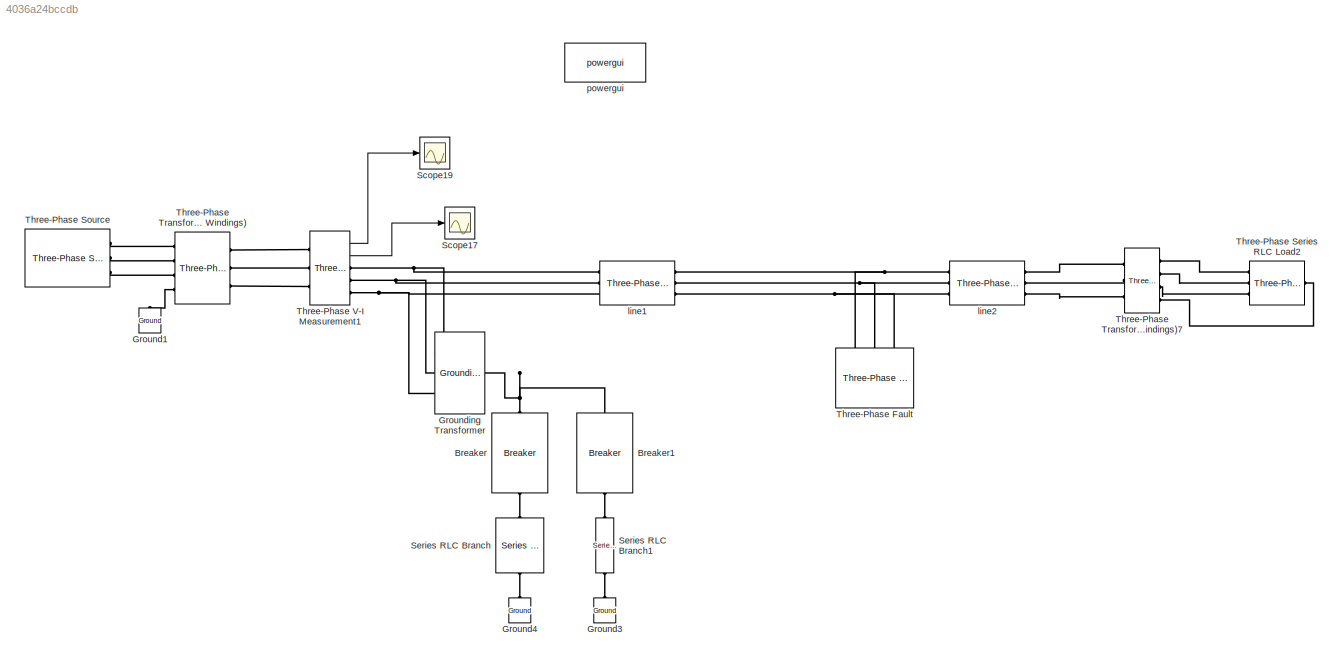
MODEL slx_4036a24bccdb
KIND model
CONFIG AbsTol = auto
CONFIG EnableMultiTasking = off
CONFIG FixedStep = 1/12000
CONFIG MaxStep = auto
CONFIG MinStep = auto
CONFIG RelTol = 1e-3
CONFIG SampleTimeConstraint = Unconstrained
CONFIG Solver = VariableStepAuto
CONFIG SolverName = VariableStepAuto
CONFIG StartTime = 0.0
CONFIG StopTime = 0.2
BLOCK [Reference]  line1  REF=powerlib/Elements/Three-Phase PI Section Line
  AttributesFormatString = \n
  Ports = [0, 0, 0, 0, 0, 3, 3]
  SourceBlock = powerlib/Elements/Three-Phase PI Section Line
  SourceType = Three-Phase PI Section Line
BLOCK [Reference]  line2  REF=powerlib/Elements/Three-Phase PI Section Line
  AttributesFormatString = \n
  Ports = [0, 0, 0, 0, 0, 3, 3]
  SourceBlock = powerlib/Elements/Three-Phase PI Section Line
  SourceType = Three-Phase PI Section Line
BLOCK [Reference] Breaker  REF=powerlib/Elements/Breaker
  Ports = [0, 0, 0, 0, 0, 1, 1]
  SourceBlock = powerlib/Elements/Breaker
  SourceType = Breaker
BLOCK [Reference] Breaker1  REF=powerlib/Elements/Breaker
  Ports = [0, 0, 0, 0, 0, 1, 1]
  SourceBlock = powerlib/Elements/Breaker
  SourceType = Breaker
BLOCK [Reference] Ground1  REF=powerlib/Elements/Ground
  Ports = [0, 0, 0, 0, 0, 1]
  SourceBlock = powerlib/Elements/Ground
  SourceType = Ground
BLOCK [Reference] Ground3  REF=powerlib/Elements/Ground
  Ports = [0, 0, 0, 0, 0, 1]
  SourceBlock = powerlib/Elements/Ground
  SourceType = Ground
BLOCK [Reference] Ground4  REF=powerlib/Elements/Ground
  Ports = [0, 0, 0, 0, 0, 1]
  SourceBlock = powerlib/Elements/Ground
  SourceType = Ground
BLOCK [Reference] Grounding Transformer   REF=spsGroundingTransformerLib/Grounding
Transformer 
  Ports = [0, 0, 0, 0, 0, 3, 1]
  SourceBlock = spsGroundingTransformerLib/Grounding\nTransformer
  SourceType = Grounding Transformer
BLOCK [Scope] Scope17
  Floating = off
  NumInputPorts = 1
  Ports = [1]
  ScopeSpecificationString = Simulink.scopes.TimeScopeBlockCfg('CurrentConfiguration', extmgr.ConfigurationSet(extmgr.Configuration('Core','General UI',true),extmgr.Configuration('Core','Source UI',true),extmgr.Configuration('Sources','WiredSimulink',true,'DataLoggingVariableName','ScopeData1'),extmgr.Configuration('Visuals','Time Domain',true,'SerializedDisplays',{struct('MinYLimReal','-10560.61251','MaxYLimReal','10579.0337...<+1550ch>
BLOCK [Scope] Scope19
  Floating = off
  NumInputPorts = 1
  Ports = [1]
  ScopeSpecificationString = Simulink.scopes.TimeScopeBlockCfg('CurrentConfiguration', extmgr.ConfigurationSet(extmgr.Configuration('Core','General UI',true),extmgr.Configuration('Core','Source UI',true),extmgr.Configuration('Sources','WiredSimulink',true,'DataLoggingVariableName','ScopeData2','DataLoggingSaveFormat','StructureWithTime'),extmgr.Configuration('Visuals','Time Domain',true,'SerializedDisplays',{struct('MinYLimRe...<+2005ch>
BLOCK [Reference] Series RLC Branch  REF=powerlib/Elements/Series RLC Branch
  Ports = [0, 0, 0, 0, 0, 1, 1]
  SourceBlock = powerlib/Elements/Series RLC Branch
  SourceType = Series RLC Branch
BLOCK [Reference] Series RLC Branch1  REF=powerlib/Elements/Series RLC Branch
  Ports = [0, 0, 0, 0, 0, 1, 1]
  SourceBlock = powerlib/Elements/Series RLC Branch
  SourceType = Series RLC Branch
BLOCK [Reference] Three-Phase Fault  REF=powerlib/Elements/Three-Phase Fault
  Ports = [0, 0, 0, 0, 0, 3]
  SourceBlock = powerlib/Elements/Three-Phase Fault
  SourceType = Three-Phase Fault
BLOCK [Reference] Three-Phase Series RLC Load2  REF=powerlib/Elements/Three-Phase Series RLC Load
  AttributesFormatString = \n
  Ports = [0, 0, 0, 0, 0, 3, 1]
  SourceBlock = powerlib/Elements/Three-Phase Series RLC Load
  SourceType = Three-Phase Series RLC Load
BLOCK [Reference] Three-Phase Source  REF=powerlib/Electrical Sources/Three-Phase Source
  Ports = [0, 0, 0, 0, 0, 0, 3]
  SourceBlock = powerlib/Electrical Sources/Three-Phase Source
  SourceType = Three-Phase Source
BLOCK [Reference] Three-Phase Transformer (Two Windings)  REF=powerlib/Elements/Three-Phase Transformer (Two Windings)
  Ports = [0, 0, 0, 0, 0, 4, 3]
  SourceBlock = powerlib/Elements/Three-Phase Transformer (Two Windings)
  SourceType = Three-Phase Transformer (Two Windings)
BLOCK [Reference] Three-Phase Transformer (Two Windings)7  REF=powerlib/Elements/Three-Phase Transformer (Two Windings)
  Ports = [0, 0, 0, 0, 0, 3, 4]
  SourceBlock = powerlib/Elements/Three-Phase Transformer (Two Windings)
  SourceType = Three-Phase Transformer (Two Windings)
BLOCK [Reference] Three-Phase V-I Measurement1  REF=powerlib/Measurements/Three-Phase V-I Measurement
  Ports = [0, 2, 0, 0, 0, 3, 3]
  SourceBlock = powerlib/Measurements/Three-Phase V-I Measurement
  SourceType = Three-Phase VI Measurement
BLOCK [Reference] powergui  REF=powerlib/powergui
  Ports = []
  Priority = 1
  SourceBlock = powerlib/powergui
  SourceType = PSB option menu block
LINE Three-Phase V-I Measurement1:1 -> Scope19:1
LINE Three-Phase V-I Measurement1:2 -> Scope17:1
PNET net1:  line1:LConn1 -- Grounding Transformer :LConn1 -- Three-Phase V-I Measurement1:RConn1
PNET net2:  line1:LConn2 -- Grounding Transformer :LConn2 -- Three-Phase V-I Measurement1:RConn2
PNET net3:  line1:LConn3 -- Grounding Transformer :LConn3 -- Three-Phase V-I Measurement1:RConn3
PNET net4:  line1:RConn1 --  line2:LConn1 -- Three-Phase Fault:LConn1
PNET net5:  line1:RConn2 --  line2:LConn2 -- Three-Phase Fault:LConn2
PNET net6:  line1:RConn3 --  line2:LConn3 -- Three-Phase Fault:LConn3
PLINE  line2:RConn1 -- Three-Phase Transformer (Two Windings)7:LConn1
PLINE  line2:RConn2 -- Three-Phase Transformer (Two Windings)7:LConn2
PLINE  line2:RConn3 -- Three-Phase Transformer (Two Windings)7:LConn3
PLINE Breaker1:LConn1 -- Series RLC Branch1:LConn1
PNET net7: Breaker1:RConn1 -- Breaker:RConn1 -- Grounding Transformer :RConn1
PLINE Breaker:LConn1 -- Series RLC Branch:LConn1
PLINE Ground1:LConn1 -- Three-Phase Transformer (Two Windings):LConn4
PLINE Ground3:LConn1 -- Series RLC Branch1:RConn1
PLINE Ground4:LConn1 -- Series RLC Branch:RConn1
PLINE Three-Phase Series RLC Load2:LConn1 -- Three-Phase Transformer (Two Windings)7:RConn1
PLINE Three-Phase Series RLC Load2:LConn2 -- Three-Phase Transformer (Two Windings)7:RConn2
PLINE Three-Phase Series RLC Load2:LConn3 -- Three-Phase Transformer (Two Windings)7:RConn3
PLINE Three-Phase Series RLC Load2:RConn1 -- Three-Phase Transformer (Two Windings)7:RConn4
PLINE Three-Phase Source:RConn1 -- Three-Phase Transformer (Two Windings):LConn1
PLINE Three-Phase Source:RConn2 -- Three-Phase Transformer (Two Windings):LConn2
PLINE Three-Phase Source:RConn3 -- Three-Phase Transformer (Two Windings):LConn3
PLINE Three-Phase Transformer (Two Windings):RConn1 -- Three-Phase V-I Measurement1:LConn1
PLINE Three-Phase Transformer (Two Windings):RConn2 -- Three-Phase V-I Measurement1:LConn2
PLINE Three-Phase Transformer (Two Windings):RConn3 -- Three-Phase V-I Measurement1:LConn3
note: PNET lines group multi-terminal physical nets as a canonical sorted terminal list (undirected conserving connections); 2-terminal nets keep the pairwise PLINE form
